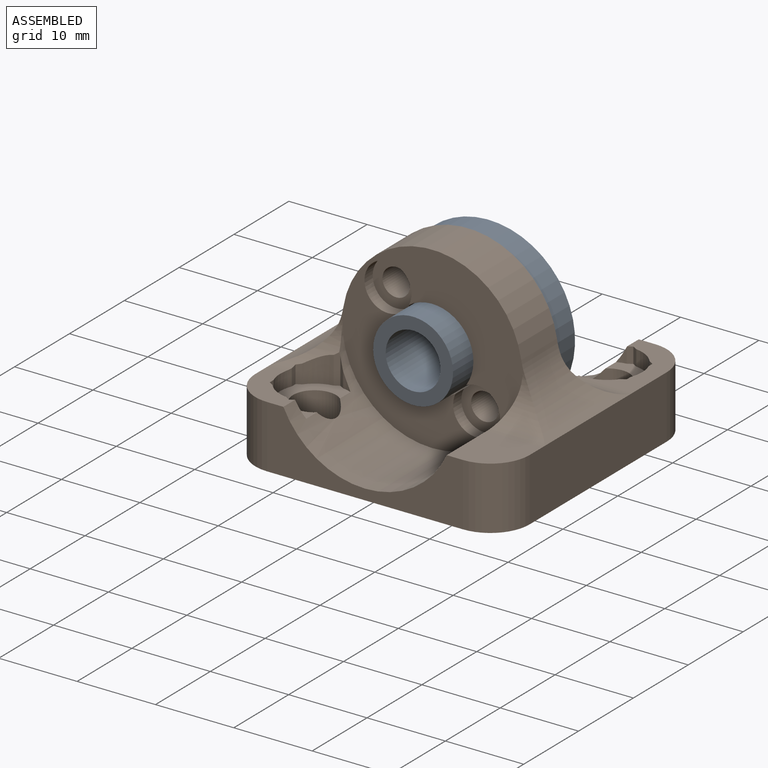
[diagram: assembled view]
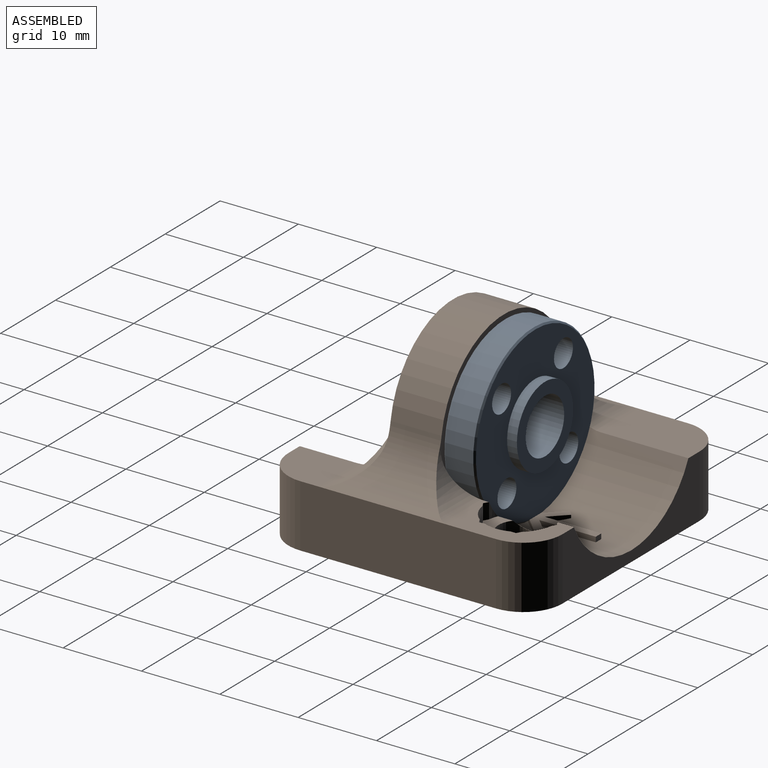
[diagram: assembled view, second angle]
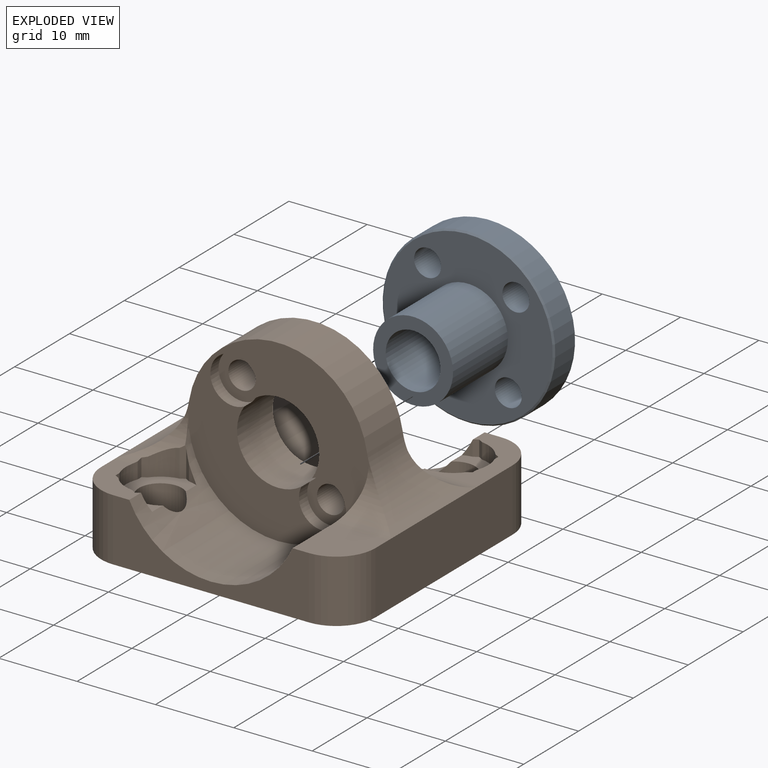
[diagram: exploded view]
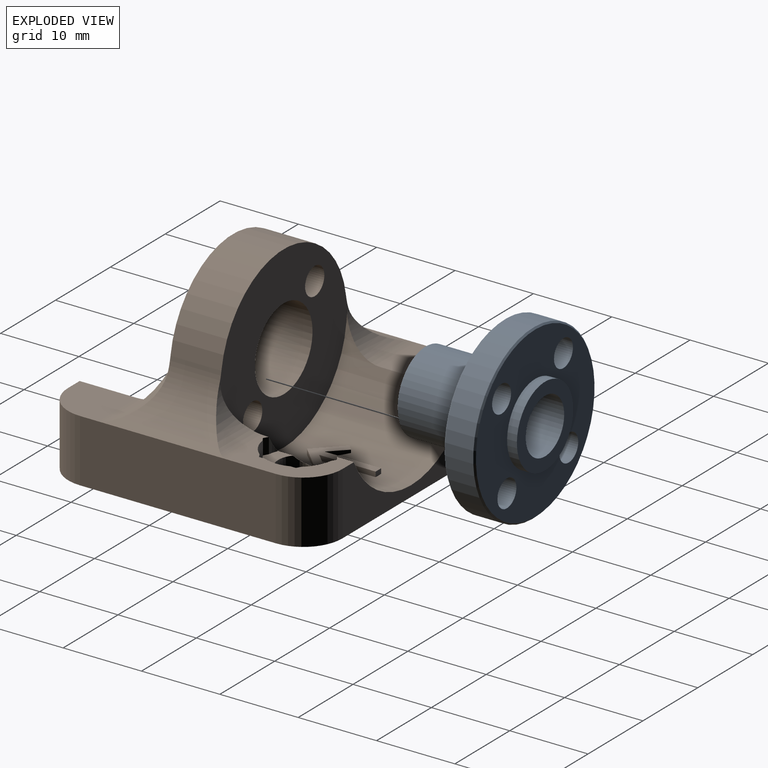
[diagram: exploded view, second angle]
ASSEMBLY  parts=2 mates=2
PART A: 14 faces, bbox 22x22x15.3 mm
  f0: plane 21.63x21.63mm, normal (0,0,-1), area 247.4mm2, adj f7,f8,f10,f11,f12,f13
  f1: plane 21.63x21.63mm, normal (0,0,1), area 248.2mm2, adj f5,f9,f10,f11,f12,f13
  f2: cylinder r=11.01mm len=22.03mm, axis (0,0,-1), area 249.1mm2, adj f8,f9
  f3: cylinder r=3.5mm len=15.25mm, axis (0,0,-1), area 335.4mm2, adj f4,f6
  f4: plane 10.2x10.2mm, normal (0,0,1), area 43.2mm2, adj f3,f5
  f5: cylinder r=5.1mm len=10.2mm, axis (0,0,-1), area 320.4mm2, adj f1,f4
  f6: plane 10.25x10.25mm, normal (0,0,-1), area 44mm2, adj f3,f7
  f7: cylinder r=5.12mm len=10.25mm, axis (0,0,1), area 40.3mm2, adj f0,f6
  f8: cone r=11.01mm half-angle=45deg, axis (0,0,1), area 19.4mm2, adj f0,f2
  f9: cone r=10.81mm half-angle=45deg, axis (0,0,-1), area 19.4mm2, adj f1,f2
  f10: cylinder r=1.72mm len=4mm, axis (0,0,1), area 43.4mm2, adj f0,f1
  f11: cylinder r=1.72mm len=4mm, axis (0,0,1), area 43.4mm2, adj f0,f1
  f12: cylinder r=1.72mm len=4mm, axis (0,0,1), area 43.4mm2, adj f0,f1
  f13: cylinder r=1.72mm len=4mm, axis (0,0,1), area 43.4mm2, adj f0,f1
PART B: 71 faces, bbox 35x35x24.3 mm
  f0: cylinder r=11.5mm len=23mm, axis (0,-1,0), area 395.9mm2, adj f9,f11,f14,f18,f24,f33,f34,f35
  f1: cylinder r=1.75mm len=5mm, axis (0,1,0), area 55mm2, adj f24,f60
  f2: cylinder r=1.75mm len=5mm, axis (0,1,0), area 55mm2, adj f24,f58
  f3: plane 3.88x0.61mm, normal (0.5,-0.87,0), area 2.6mm2, adj f13,f28,f29,f46,f49
  f4: plane 2.26x0.69mm, normal (1,0,0), area 1.5mm2, adj f29,f30,f45,f49
  f5: plane 2x0.6mm, normal (0.5,0.87,0), area 1.4mm2, adj f10,f29,f31,f44
  f6: plane 2x0.6mm, normal (-0.5,-0.87,0), area 1.4mm2, adj f9,f35,f38,f41
  f7: plane 2x0.6mm, normal (-0.5,0.87,0), area 1.4mm2, adj f9,f34,f35,f40
  f8: plane 2x0.69mm, normal (-1,0,0), area 1.4mm2, adj f9,f35,f37,f39
  f9: plane 11.25x7.07mm, normal (0,0,1), area 38.1mm2, adj f0,f6,f7,f8,f17,f18,f33,f34
  f10: plane 7.25x7.07mm, normal (0,0,1), area 24.1mm2, adj f5,f13,f15,f16,f27,f31,f32,f44
  f11: cylinder r=2.75mm len=6mm, axis (0,0,-1), area 99.9mm2, adj f0,f20,f35
  f12: cylinder r=2.75mm len=6mm, axis (0,0,-1), area 99.9mm2, adj f13,f20,f29
  f13: cylinder r=11.5mm len=23mm, axis (0,-1,0), area 304.8mm2, adj f3,f10,f12,f16,f19,f23,f27,f28
  f14: plane 11.25x7.07mm, normal (0,0,1), area 74.2mm2, adj f0,f15,f18,f51,f56
  f15: plane 25x8mm, normal (-1,0,0), area 200mm2, adj f10,f14,f20,f25,f53,f56
  f16: plane 25x8mm, normal (0,-1,0), area 100.4mm2, adj f10,f13,f19,f20,f53,f54
  f17: plane 25x8mm, normal (1,0,0), area 200mm2, adj f9,f19,f20,f26,f54,f55
  f18: plane 25x8mm, normal (0,1,0), area 100.4mm2, adj f0,f9,f14,f20,f55,f56
  f19: plane 7.25x7.07mm, normal (0,0,1), area 45.9mm2, adj f13,f16,f17,f50,f54
  f20: plane 35x35mm, normal (0,0,-1), area 1156mm2, adj f11,f12,f15,f16,f17,f18,f53,f54
  f21: cylinder r=5.25mm len=10.5mm, axis (0,1,0), area 208.6mm2, adj f23,f24,f57,f58,f59,f60
  f22: cylinder r=11.5mm len=22.72mm, axis (0,1,0), area 211.3mm2, adj f23,f24,f25,f26
  f23: plane 23.53x22.9mm, normal (0,-1,0), area 271mm2, adj f13,f21,f22,f25,f26,f49,f50,f57
  f24: plane 23.53x22.9mm, normal (0,1,0), area 307.6mm2, adj f0,f1,f2,f21,f22,f25,f26,f51
  f25: cylinder r=8mm len=16.5mm, axis (0,-1,0), area 85.9mm2, adj f15,f22,f23,f24,f49,f51
  f26: cylinder r=8mm len=16.5mm, axis (0,-1,0), area 85.9mm2, adj f17,f22,f23,f24,f50,f52
  f27: plane 2x0.6mm, normal (-0.5,0.87,0), area 1.4mm2, adj f10,f13,f29,f32,f48
  f28: plane 3.53x0.63mm, normal (-0.5,-0.87,0), area 1.8mm2, adj f3,f13,f29,f47
  f29: plane 9.41x6.16mm, normal (0,0,1), area 25.3mm2, adj f3,f4,f5,f12,f13,f27,f28,f30
  f30: plane 2.4x0.6mm, normal (0.5,-0.87,0), area 1.6mm2, adj f4,f29,f46,f49
  f31: plane 2x0.69mm, normal (1,0,0), area 1.4mm2, adj f5,f10,f29,f45
  f32: plane 2x0.6mm, normal (0.5,0.87,0), area 1.4mm2, adj f10,f27,f29,f44
  f33: plane 2x0.6mm, normal (0.5,-0.87,0), area 1.4mm2, adj f0,f9,f35,f36,f43
  f34: plane 2x0.6mm, normal (0.5,0.87,0), area 1.4mm2, adj f0,f7,f9,f35,f42
  f35: plane 9.41x6.16mm, normal (0,0,1), area 25.3mm2, adj f0,f6,f7,f8,f11,f33,f34,f36
  f36: plane 2x0.6mm, normal (-0.5,-0.87,0), area 1.4mm2, adj f9,f33,f35,f41
  f37: plane 2x0.6mm, normal (-0.5,0.87,0), area 1.4mm2, adj f8,f9,f35,f40
  f38: plane 2x0.69mm, normal (-1,0,0), area 1.4mm2, adj f6,f9,f35,f39
  f39: cylinder r=4.4mm len=3.32mm, axis (0,0,1), area 6.8mm2, adj f8,f9,f35,f38
  f40: cylinder r=4.4mm len=2.87mm, axis (0,0,1), area 6.8mm2, adj f7,f9,f35,f37
  f41: cylinder r=4.4mm len=2.87mm, axis (0,0,1), area 6.8mm2, adj f6,f9,f35,f36
  f42: cylinder r=4.4mm len=1.94mm, axis (0,0,1), area 1.2mm2, adj f0,f34,f35
  f43: cylinder r=4.4mm len=1.94mm, axis (0,0,1), area 1.2mm2, adj f0,f33,f35
  f44: cylinder r=4.4mm len=2.87mm, axis (0,0,1), area 6.8mm2, adj f5,f10,f29,f32
  f45: cylinder r=4.4mm len=3.32mm, axis (0,0,1), area 6.8mm2, adj f4,f10,f29,f31,f49
  f46: cylinder r=4.4mm len=3.54mm, axis (0,0,1), area 10.3mm2, adj f3,f29,f30,f49
  f47: cylinder r=4.4mm len=1.94mm, axis (0,0,1), area 1.2mm2, adj f13,f28,f29
  f48: cylinder r=4.4mm len=1.94mm, axis (0,0,1), area 1.2mm2, adj f13,f27,f29
  f49: cylinder r=5mm len=6.39mm, axis (-1,0,0), area 13.3mm2, adj f3,f4,f10,f13,f23,f25,f30,f45
  f50: cylinder r=5mm len=7.07mm, axis (-1,0,0), area 27.9mm2, adj f13,f19,f23,f26
  f51: cylinder r=5mm len=7.07mm, axis (1,0,0), area 27.9mm2, adj f0,f14,f24,f25
  f52: cylinder r=5mm len=7.07mm, axis (1,0,0), area 27.9mm2, adj f0,f9,f24,f26
  f53: cylinder r=5mm len=8mm, axis (0,0,-1), area 62.8mm2, adj f10,f15,f16,f20
  f54: cylinder r=5mm len=8mm, axis (0,0,1), area 62.8mm2, adj f16,f17,f19,f20
  f55: cylinder r=5mm len=8mm, axis (0,0,-1), area 62.8mm2, adj f9,f17,f18,f20
  f56: cylinder r=5mm len=8mm, axis (0,0,1), area 62.8mm2, adj f14,f15,f18,f20
  f57: cylinder r=3mm len=6mm, axis (0,-1,0), area 25.3mm2, adj f21,f23,f58
  f58: plane 6x6mm, normal (0,-1,0), area 18.3mm2, adj f2,f21,f57
  f59: cylinder r=3mm len=6mm, axis (0,-1,0), area 25.3mm2, adj f21,f23,f60
  f60: plane 6x6mm, normal (0,-1,0), area 18.3mm2, adj f1,f21,f59
  f61: plane 0.71x0.71mm, normal (0.71,0.71,0), area 0.3mm2, adj f0,f62,f69,f70
  f62: plane 3.21x3.21mm, normal (0.71,-0.71,0), area 2.3mm2, adj f0,f61,f63,f70
  f63: plane 3.21x3.21mm, normal (-0.71,-0.71,0), area 2.3mm2, adj f0,f62,f64,f70
  f64: plane 0.71x0.71mm, normal (-0.71,0.71,0), area 0.3mm2, adj f0,f63,f65,f70
  f65: plane 1.99x1.99mm, normal (0.71,0.71,0), area 1.5mm2, adj f0,f64,f66,f70
  f66: plane 7.19x0.64mm, normal (-1,0,0), area 4.6mm2, adj f0,f65,f67,f70
  f67: plane 1x0.65mm, normal (0,1,0), area 0.6mm2, adj f0,f66,f68,f70
  f68: plane 7.19x0.64mm, normal (1,0,0), area 4.6mm2, adj f0,f67,f69,f70
  f69: plane 1.99x1.99mm, normal (-0.71,0.71,0), area 1.5mm2, adj f0,f61,f68,f70
  f70: plane 9.11x6.36mm, normal (0,0,1), area 15.4mm2, adj f61,f62,f63,f64,f65,f66,f67,f68
PLACE A rot(axis=(0.89,-0.32,0.32),96.8deg) t=(0,5.25,12.75)mm
PLACE B at identity fixed
MATE planar B.f24 <-> A.f2  axis (0,1,0) through (0,1.25,12.82)mm
MATE cylindrical A.f2 <-> B.f21  axis (0,-1,0) through (0,1.25,12.75)mm
